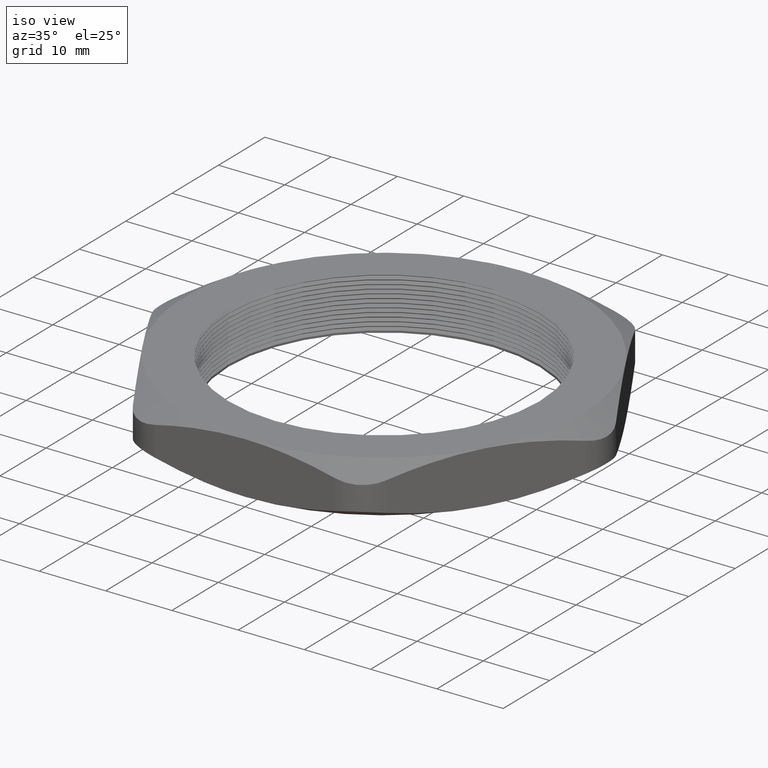
[diagram: clean part render]
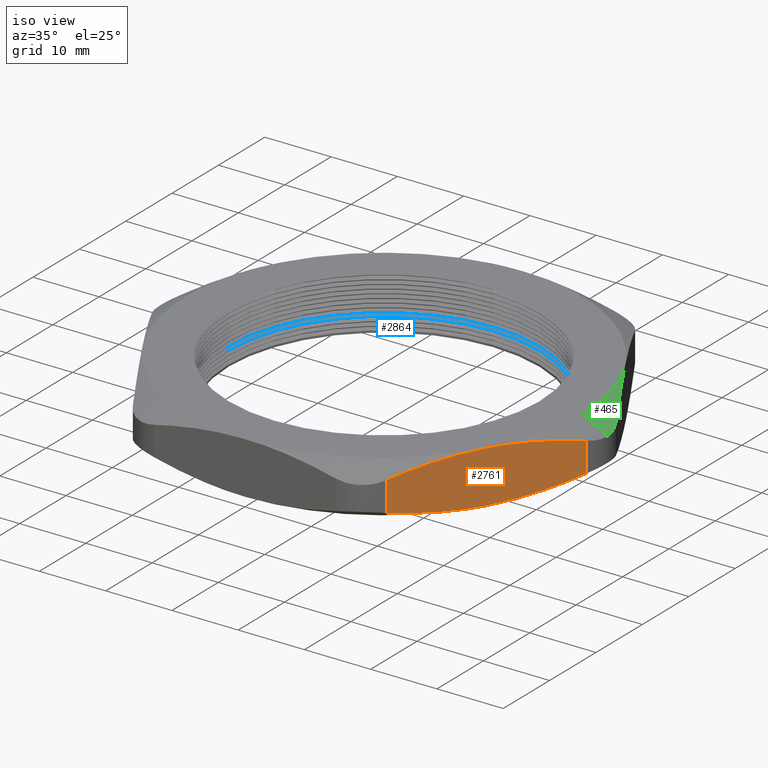
[diagram: same view with three faces highlighted in distinct colors, each labeled with its STEP entity id]
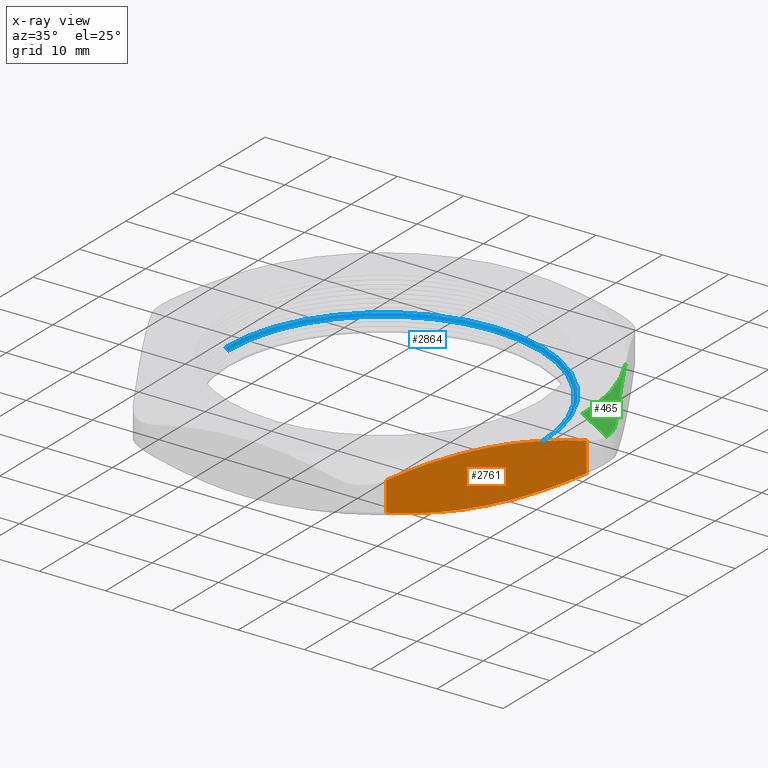
[diagram: x-ray of the same camera — body ghosted, the three highlighted faces saturated]
A machine part, iso view with three faces highlighted in distinct colors.
The next image is the same camera in x-ray (body ghosted, the three faces saturated) — at least one of them is partly hidden behind the body in this view.
Their STEP definitions:

[orange] entity #2761 — the highlighted planar face has unit normal (-0.866, 0.5, 0).
#26 = CARTESIAN_POINT ( 'NONE',  ( 0.9763607710639457000, -0.6688935380001205200, 0.3100000000000002200 ) ) ;
#27 = CARTESIAN_POINT ( 'NONE',  ( 0.9312536539912954500, -0.7470213565529084700, 0.3038445522537131500 ) ) ;
#51 = CARTESIAN_POINT ( 'NONE',  ( 0.8418140550371717700, -0.9019352861500354900, 0.2807479695387031200 ) ) ;
#68 = CARTESIAN_POINT ( 'NONE',  ( 1.021909976465637600, -0.5900000000000000800, 0.3100000000000000000 ) ) ;
#1479 = CARTESIAN_POINT ( 'NONE',  ( 0.7974787547506383400, -0.9787262788151338500, 0.2638460768298029900 ) ) ;
#1480 = CARTESIAN_POINT ( 'NONE',  ( 0.7534421012924615900, -1.054999999999999700, 0.2427859541343052300 ) ) ;
#1481 = B_SPLINE_CURVE_WITH_KNOTS ( 'NONE', 3,
 ( #1480, #1479, #51, #27, #26, #68 ),
 .UNSPECIFIED., .F., .F.,
 ( 4, 2, 4 ),
 ( 0.003767047510153076000, 0.01063822244227694300, 0.01750939737440080800 ),
 .UNSPECIFIED. ) ;
#1483 = CARTESIAN_POINT ( 'NONE',  ( 1.021909976465637600, -0.5900000000000000800, 0.3100000000000000000 ) ) ;
#1525 = CARTESIAN_POINT ( 'NONE',  ( 0.7534421012924615900, -1.054999999999999500, 0.06721404586569473800 ) ) ;
#1526 = CARTESIAN_POINT ( 'NONE',  ( 0.7534421012924615900, -1.054999999999999700, 0.2427859541343052300 ) ) ;
#1527 = CARTESIAN_POINT ( 'NONE',  ( 0.9764383408460222100, -0.6687591831964324600, 0.001528555022777704000 ) ) ;
#1528 = CARTESIAN_POINT ( 'NONE',  ( 0.9992330720533516600, -0.6292775506004607600, -2.533095380843962000E-016 ) ) ;
#1529 = CARTESIAN_POINT ( 'NONE',  ( 1.021909976465637600, -0.5900000000000003000, 0.0000000000000000000 ) ) ;
#1532 = B_SPLINE_CURVE_WITH_KNOTS ( 'NONE', 3,
 ( #1529, #1528, #1527, #1586, #1585, #1584, #1583, #1582 ),
 .UNSPECIFIED., .F., .F.,
 ( 4, 2, 2, 4 ),
 ( 0.01750939737440083600, 0.02093024688783883000, 0.02435109640127682000, 0.03119279542815280700 ),
 .UNSPECIFIED. ) ;
#1582 = CARTESIAN_POINT ( 'NONE',  ( 0.7534421012924615900, -1.054999999999999500, 0.06721404586569473800 ) ) ;
#1583 = CARTESIAN_POINT ( 'NONE',  ( 0.7973887212075460000, -0.9788822214861552200, 0.04619698088042988700 ) ) ;
#1584 = CARTESIAN_POINT ( 'NONE',  ( 0.8416764008185141400, -0.9021737102506264300, 0.02929794194380917800 ) ) ;
#1585 = CARTESIAN_POINT ( 'NONE',  ( 0.9087710475143715400, -0.7859623732575179400, 0.01195612090221751800 ) ) ;
#1586 = CARTESIAN_POINT ( 'NONE',  ( 0.9312463869647981100, -0.7470339434120221200, 0.007509197429468494200 ) ) ;
#1712 = AXIS2_PLACEMENT_3D ( 'NONE', #1959, #1955, #1954 ) ;
#1713 = PLANE ( 'NONE',  #1712 ) ;
#1833 = CARTESIAN_POINT ( 'NONE',  ( 1.021909976465637600, -0.5900000000000003000, 0.0000000000000000000 ) ) ;
#1861 = CARTESIAN_POINT ( 'NONE',  ( 1.290377851638813600, -0.1249999999999997600, 0.2427859541343050700 ) ) ;
#1862 = CARTESIAN_POINT ( 'NONE',  ( 1.246431231723729600, -0.2011177785138443800, 0.2638030191195700500 ) ) ;
#1863 = CARTESIAN_POINT ( 'NONE',  ( 1.202143552112761500, -0.2778262897493731800, 0.2807020580561908600 ) ) ;
#1864 = CARTESIAN_POINT ( 'NONE',  ( 1.135048905416903500, -0.3940376267424817700, 0.2980438790977825200 ) ) ;
#1865 = CARTESIAN_POINT ( 'NONE',  ( 1.112573565966476200, -0.4329660565879778200, 0.3024908025705314000 ) ) ;
#1866 = CARTESIAN_POINT ( 'NONE',  ( 1.067381612085252600, -0.5112408168035675900, 0.3084714449772222900 ) ) ;
#1867 = CARTESIAN_POINT ( 'NONE',  ( 1.044586880877922800, -0.5507224493995390700, 0.3100000000000002200 ) ) ;
#1868 = CARTESIAN_POINT ( 'NONE',  ( 1.021909976465637600, -0.5900000000000000800, 0.3100000000000000000 ) ) ;
#1887 = B_SPLINE_CURVE_WITH_KNOTS ( 'NONE', 3,
 ( #1868, #1867, #1866, #1865, #1864, #1863, #1862, #1861 ),
 .UNSPECIFIED., .F., .F.,
 ( 4, 2, 2, 4 ),
 ( 0.01750939737440080800, 0.02093024688783880600, 0.02435109640127680600, 0.03119279542815280700 ),
 .UNSPECIFIED. ) ;
#1954 = DIRECTION ( 'NONE',  ( -0.5000000000000000000, -0.8660254037844386000, 0.0000000000000000000 ) ) ;
#1955 = DIRECTION ( 'NONE',  ( -0.8660254037844387100, 0.5000000000000001100, 0.0000000000000000000 ) ) ;
#1956 = FACE_OUTER_BOUND ( 'NONE', #2837, .T. ) ;
#1959 = CARTESIAN_POINT ( 'NONE',  ( 0.6812733176437583100, -1.179999999999999700, 0.3100000000000000000 ) ) ;
#2080 = DIRECTION ( 'NONE',  ( 0.0000000000000000000, 0.0000000000000000000, -1.000000000000000000 ) ) ;
#2081 = VECTOR ( 'NONE', #2080, 39.37007874015748100 ) ;
#2082 = CARTESIAN_POINT ( 'NONE',  ( 0.7534421012924615900, -1.054999999999999700, 0.3100000000000000000 ) ) ;
#2083 = LINE ( 'NONE', #2082, #2081 ) ;
#2110 = DIRECTION ( 'NONE',  ( 0.0000000000000000000, 0.0000000000000000000, 1.000000000000000000 ) ) ;
#2111 = VECTOR ( 'NONE', #2110, 39.37007874015748100 ) ;
#2112 = CARTESIAN_POINT ( 'NONE',  ( 1.290377851638813600, -0.1249999999999996300, 0.3100000000000000000 ) ) ;
#2117 = LINE ( 'NONE', #2112, #2111 ) ;
#2145 = CARTESIAN_POINT ( 'NONE',  ( 1.290377851638813600, -0.1249999999999997100, 0.06721404586569496000 ) ) ;
#2154 = CARTESIAN_POINT ( 'NONE',  ( 1.290377851638813600, -0.1249999999999997100, 0.06721404586569496000 ) ) ;
#2155 = B_SPLINE_CURVE_WITH_KNOTS ( 'NONE', 3,
 ( #2145, #2204, #2203, #2202, #2201, #2200 ),
 .UNSPECIFIED., .F., .F.,
 ( 4, 2, 4 ),
 ( 0.003767047510153076800, 0.01063822244227695700, 0.01750939737440083600 ),
 .UNSPECIFIED. ) ;
#2200 = CARTESIAN_POINT ( 'NONE',  ( 1.021909976465637600, -0.5900000000000003000, 0.0000000000000000000 ) ) ;
#2201 = CARTESIAN_POINT ( 'NONE',  ( 1.067459181867328900, -0.5111064619998797500, -2.619799540799127500E-016 ) ) ;
#2202 = CARTESIAN_POINT ( 'NONE',  ( 1.112566298939979400, -0.4329786434470913000, 0.006155447746286743900 ) ) ;
#2203 = CARTESIAN_POINT ( 'NONE',  ( 1.202005897894103700, -0.2780647138499641200, 0.02925203046129691200 ) ) ;
#2204 = CARTESIAN_POINT ( 'NONE',  ( 1.246341198180636700, -0.2012737211848653100, 0.04615392317019703600 ) ) ;
#2278 = CARTESIAN_POINT ( 'NONE',  ( 1.290377851638813600, -0.1249999999999997600, 0.2427859541343050700 ) ) ;
#2533 = VERTEX_POINT ( 'NONE', #1483 ) ;
#2534 = ORIENTED_EDGE ( 'NONE', *, *, #2535, .F. ) ;
#2535 = EDGE_CURVE ( 'NONE', #2536, #2533, #1481, .T. ) ;
#2536 = VERTEX_POINT ( 'NONE', #1526 ) ;
#2537 = VERTEX_POINT ( 'NONE', #1525 ) ;
#2553 = EDGE_CURVE ( 'NONE', #2702, #2537, #1532, .T. ) ;
#2702 = VERTEX_POINT ( 'NONE', #1833 ) ;
#2703 = ORIENTED_EDGE ( 'NONE', *, *, #2828, .T. ) ;
#2710 = EDGE_CURVE ( 'NONE', #2533, #2932, #1887, .T. ) ;
#2752 = ORIENTED_EDGE ( 'NONE', *, *, #2710, .F. ) ;
#2761 = ADVANCED_FACE ( 'NONE', ( #1956 ), #1713, .F. ) ;
#2789 = ORIENTED_EDGE ( 'NONE', *, *, #2817, .T. ) ;
#2790 = ORIENTED_EDGE ( 'NONE', *, *, #2553, .F. ) ;
#2817 = EDGE_CURVE ( 'NONE', #2536, #2537, #2083, .T. ) ;
#2828 = EDGE_CURVE ( 'NONE', #2839, #2932, #2117, .T. ) ;
#2837 = EDGE_LOOP ( 'NONE', ( #2953, #2703, #2752, #2534, #2789, #2790 ) ) ;
#2838 = EDGE_CURVE ( 'NONE', #2839, #2702, #2155, .T. ) ;
#2839 = VERTEX_POINT ( 'NONE', #2154 ) ;
#2932 = VERTEX_POINT ( 'NONE', #2278 ) ;
#2953 = ORIENTED_EDGE ( 'NONE', *, *, #2838, .F. ) ;

[blue] entity #2864 — the highlighted conical surface has half-angle 60 deg.
#177 = VERTEX_POINT ( 'NONE', #243 ) ;
#180 = VERTEX_POINT ( 'NONE', #237 ) ;
#181 = VERTEX_POINT ( 'NONE', #236 ) ;
#236 = CARTESIAN_POINT ( 'NONE',  ( -0.9250000000000002700, 0.0000000000000000000, 0.08690598923241497900 ) ) ;
#237 = CARTESIAN_POINT ( 'NONE',  ( 0.9450000000000002800, 1.157291225194249100E-016, 0.09845299461620764200 ) ) ;
#243 = CARTESIAN_POINT ( 'NONE',  ( -0.9450000000000002800, 0.0000000000000000000, 0.09845299461620764200 ) ) ;
#680 = EDGE_CURVE ( 'NONE', #686, #180, #1081, .T. ) ;
#686 = VERTEX_POINT ( 'NONE', #1064 ) ;
#703 = EDGE_CURVE ( 'NONE', #181, #177, #1098, .T. ) ;
#1064 = CARTESIAN_POINT ( 'NONE',  ( 0.9250000000000002700, 1.132798289211302000E-016, 0.08690598923241497900 ) ) ;
#1073 = DIRECTION ( 'NONE',  ( 0.8660254037844366000, 0.0000000000000000000, 0.5000000000000033300 ) ) ;
#1074 = VECTOR ( 'NONE', #1073, 39.37007874015748100 ) ;
#1075 = CARTESIAN_POINT ( 'NONE',  ( 0.9250000000000002700, 0.0000000000000000000, 0.08690598923241497900 ) ) ;
#1081 = LINE ( 'NONE', #1075, #1074 ) ;
#1095 = DIRECTION ( 'NONE',  ( -0.8660254037844366000, 1.060575238724904700E-016, 0.5000000000000033300 ) ) ;
#1096 = VECTOR ( 'NONE', #1095, 39.37007874015748100 ) ;
#1097 = CARTESIAN_POINT ( 'NONE',  ( -0.9250000000000002700, 1.132798289211302000E-016, 0.08690598923241497900 ) ) ;
#1098 = LINE ( 'NONE', #1097, #1096 ) ;
#1453 = DIRECTION ( 'NONE',  ( 1.000000000000000000, 0.0000000000000000000, 0.0000000000000000000 ) ) ;
#1454 = DIRECTION ( 'NONE',  ( 0.0000000000000000000, 0.0000000000000000000, 1.000000000000000000 ) ) ;
#1455 = AXIS2_PLACEMENT_3D ( 'NONE', #1461, #1454, #1453 ) ;
#1456 = CIRCLE ( 'NONE', #1455, 0.9250000000000002700 ) ;
#1461 = CARTESIAN_POINT ( 'NONE',  ( 0.0000000000000000000, 0.0000000000000000000, 0.08690598923241497900 ) ) ;
#2175 = CIRCLE ( 'NONE', #2238, 0.9450000000000002800 ) ;
#2228 = DIRECTION ( 'NONE',  ( 1.000000000000000000, 0.0000000000000000000, 0.0000000000000000000 ) ) ;
#2229 = DIRECTION ( 'NONE',  ( 0.0000000000000000000, 0.0000000000000000000, 1.000000000000000000 ) ) ;
#2230 = CARTESIAN_POINT ( 'NONE',  ( 0.0000000000000000000, 0.0000000000000000000, 0.08690598923241497900 ) ) ;
#2231 = AXIS2_PLACEMENT_3D ( 'NONE', #2230, #2229, #2228 ) ;
#2233 = CONICAL_SURFACE ( 'NONE', #2231, 0.9250000000000002700, 1.047197551196593900 ) ;
#2234 = FACE_OUTER_BOUND ( 'NONE', #2865, .T. ) ;
#2235 = DIRECTION ( 'NONE',  ( 1.000000000000000000, 0.0000000000000000000, 0.0000000000000000000 ) ) ;
#2236 = DIRECTION ( 'NONE',  ( 0.0000000000000000000, 0.0000000000000000000, 1.000000000000000000 ) ) ;
#2237 = CARTESIAN_POINT ( 'NONE',  ( 0.0000000000000000000, 0.0000000000000000000, 0.09845299461620764200 ) ) ;
#2238 = AXIS2_PLACEMENT_3D ( 'NONE', #2237, #2236, #2235 ) ;
#2522 = EDGE_CURVE ( 'NONE', #686, #181, #1456, .T. ) ;
#2863 = EDGE_CURVE ( 'NONE', #180, #177, #2175, .T. ) ;
#2864 = ADVANCED_FACE ( 'NONE', ( #2234 ), #2233, .F. ) ;
#2865 = EDGE_LOOP ( 'NONE', ( #2866, #2867, #2868, #2869 ) ) ;
#2866 = ORIENTED_EDGE ( 'NONE', *, *, #703, .F. ) ;
#2867 = ORIENTED_EDGE ( 'NONE', *, *, #2522, .F. ) ;
#2868 = ORIENTED_EDGE ( 'NONE', *, *, #680, .T. ) ;
#2869 = ORIENTED_EDGE ( 'NONE', *, *, #2863, .T. ) ;

[green] entity #465 — the highlighted conical surface has half-angle 60 deg.
#287 = DIRECTION ( 'NONE',  ( 1.000000000000000000, 0.0000000000000000000, 0.0000000000000000000 ) ) ;
#288 = DIRECTION ( 'NONE',  ( 0.0000000000000000000, 0.0000000000000000000, -1.000000000000000000 ) ) ;
#295 = CARTESIAN_POINT ( 'NONE',  ( 0.0000000000000000000, 0.0000000000000000000, 0.3100000000000000000 ) ) ;
#296 = AXIS2_PLACEMENT_3D ( 'NONE', #295, #288, #287 ) ;
#297 = CONICAL_SURFACE ( 'NONE', #296, 1.180000000000000200, 1.047197551196600100 ) ;
#298 = FACE_OUTER_BOUND ( 'NONE', #2605, .T. ) ;
#465 = ADVANCED_FACE ( 'NONE', ( #298 ), #297, .T. ) ;
#697 = ORIENTED_EDGE ( 'NONE', *, *, #698, .T. ) ;
#698 = EDGE_CURVE ( 'NONE', #2608, #699, #1108, .T. ) ;
#699 = VERTEX_POINT ( 'NONE', #1104 ) ;
#700 = VERTEX_POINT ( 'NONE', #1103 ) ;
#1103 = CARTESIAN_POINT ( 'NONE',  ( 1.290377851638813600, 0.1250000000000003600, 0.2427859541343050100 ) ) ;
#1104 = CARTESIAN_POINT ( 'NONE',  ( 1.323871500692703800, -1.232579635649854100E-024, 0.2269357503463525200 ) ) ;
#1105 = DIRECTION ( 'NONE',  ( 0.8660254037844397100, 0.0000000000000000000, -0.4999999999999979500 ) ) ;
#1106 = VECTOR ( 'NONE', #1105, 39.37007874015748900 ) ;
#1107 = CARTESIAN_POINT ( 'NONE',  ( 1.180000000000000200, 0.0000000000000000000, 0.3100000000000000000 ) ) ;
#1108 = LINE ( 'NONE', #1107, #1106 ) ;
#1587 = CARTESIAN_POINT ( 'NONE',  ( 1.323871500692704400, 0.01095095147729039700, 0.2269357503463524700 ) ) ;
#1588 = CARTESIAN_POINT ( 'NONE',  ( 1.323871500692703800, -1.232579635649854100E-024, 0.2269357503463525200 ) ) ;
#1589 = B_SPLINE_CURVE_WITH_KNOTS ( 'NONE', 3,
 ( #1588, #1587, #1643, #1642, #1641, #1640, #1639, #1638 ),
 .UNSPECIFIED., .F., .F.,
 ( 4, 2, 2, 4 ),
 ( 0.003343581398575299100, 0.004176957635011804700, 0.005010333871448310700, 0.006677086344321323700 ),
 .UNSPECIFIED. ) ;
#1629 = CARTESIAN_POINT ( 'NONE',  ( 1.021909976465638100, 0.5899999999999999700, 0.3100000000000000000 ) ) ;
#1630 = CARTESIAN_POINT ( 'NONE',  ( 1.067459181867329100, 0.5111064619998796400, 0.3100000000000000500 ) ) ;
#1631 = CARTESIAN_POINT ( 'NONE',  ( 1.112566298939980000, 0.4329786434470912500, 0.3038445522537129900 ) ) ;
#1632 = CARTESIAN_POINT ( 'NONE',  ( 1.202005897894103900, 0.2780647138499645600, 0.2807479695387029000 ) ) ;
#1633 = CARTESIAN_POINT ( 'NONE',  ( 1.246341198180637200, 0.2012737211848660000, 0.2638460768298028200 ) ) ;
#1634 = CARTESIAN_POINT ( 'NONE',  ( 1.290377851638813600, 0.1250000000000003600, 0.2427859541343050100 ) ) ;
#1638 = CARTESIAN_POINT ( 'NONE',  ( 1.290377851638813600, 0.1250000000000003600, 0.2427859541343050100 ) ) ;
#1639 = CARTESIAN_POINT ( 'NONE',  ( 1.301163024300264800, 0.1063195329819646200, 0.2376280449449062200 ) ) ;
#1640 = CARTESIAN_POINT ( 'NONE',  ( 1.309608273902644400, 0.08602256121026832800, 0.2336403273867144700 ) ) ;
#1641 = CARTESIAN_POINT ( 'NONE',  ( 1.318085377249127700, 0.05456655859989943700, 0.2296491859462562200 ) ) ;
#1642 = CARTESIAN_POINT ( 'NONE',  ( 1.320238384401354300, 0.04387041525387968400, 0.2286388179600905800 ) ) ;
#1643 = CARTESIAN_POINT ( 'NONE',  ( 1.323141469423208900, 0.02203945126250706600, 0.2272774143254681600 ) ) ;
#1645 = B_SPLINE_CURVE_WITH_KNOTS ( 'NONE', 3,
 ( #1634, #1633, #1632, #1631, #1630, #1629 ),
 .UNSPECIFIED., .F., .F.,
 ( 4, 2, 4 ),
 ( 0.003767047510153077700, 0.01063822244227694300, 0.01750939737440080500 ),
 .UNSPECIFIED. ) ;
#1651 = CARTESIAN_POINT ( 'NONE',  ( 1.021909976465638100, 0.5899999999999999700, 0.3100000000000000000 ) ) ;
#1652 = CARTESIAN_POINT ( 'NONE',  ( 1.180000000000000200, 0.0000000000000000000, 0.3100000000000000000 ) ) ;
#1653 = DIRECTION ( 'NONE',  ( 1.000000000000000000, 0.0000000000000000000, 0.0000000000000000000 ) ) ;
#1654 = DIRECTION ( 'NONE',  ( 0.0000000000000000000, 0.0000000000000000000, 1.000000000000000000 ) ) ;
#1655 = CARTESIAN_POINT ( 'NONE',  ( 0.0000000000000000000, 0.0000000000000000000, 0.3100000000000000000 ) ) ;
#1656 = AXIS2_PLACEMENT_3D ( 'NONE', #1655, #1654, #1653 ) ;
#1657 = CIRCLE ( 'NONE', #1656, 1.180000000000000200 ) ;
#2583 = ORIENTED_EDGE ( 'NONE', *, *, #2584, .T. ) ;
#2584 = EDGE_CURVE ( 'NONE', #699, #700, #1589, .T. ) ;
#2585 = ORIENTED_EDGE ( 'NONE', *, *, #2586, .T. ) ;
#2586 = EDGE_CURVE ( 'NONE', #700, #2609, #1645, .T. ) ;
#2605 = EDGE_LOOP ( 'NONE', ( #2606, #697, #2583, #2585 ) ) ;
#2606 = ORIENTED_EDGE ( 'NONE', *, *, #2607, .F. ) ;
#2607 = EDGE_CURVE ( 'NONE', #2608, #2609, #1657, .T. ) ;
#2608 = VERTEX_POINT ( 'NONE', #1652 ) ;
#2609 = VERTEX_POINT ( 'NONE', #1651 ) ;